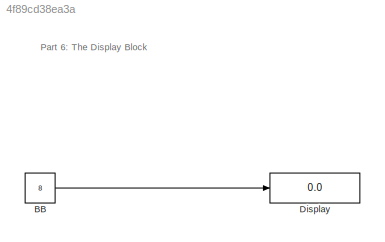
MODEL slx_4f89cd38ea3a
KIND model
CONFIG AbsTol = auto
CONFIG EnableMultiTasking = off
CONFIG FixedStep = auto
CONFIG MaxStep = auto
CONFIG MinStep = auto
CONFIG RelTol = 1e-3
CONFIG SampleTimeConstraint = Unconstrained
CONFIG SolverName = VariableStepAuto
CONFIG StartTime = 0.0
CONFIG StopTime = 10.0
BLOCK [Constant] BB
  Value = 8
BLOCK [Display] Display
  Decimation = 1
  Ports = [1]
ANNOTATION (root): P art 6: The Display Block
LINE BB:1 -> Display:1
